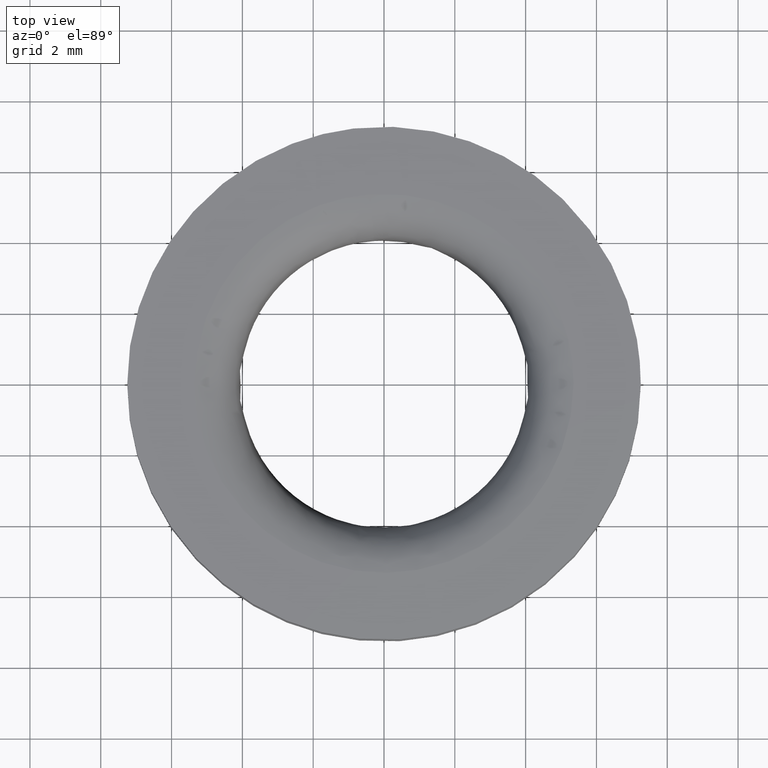
[diagram: clean part render]
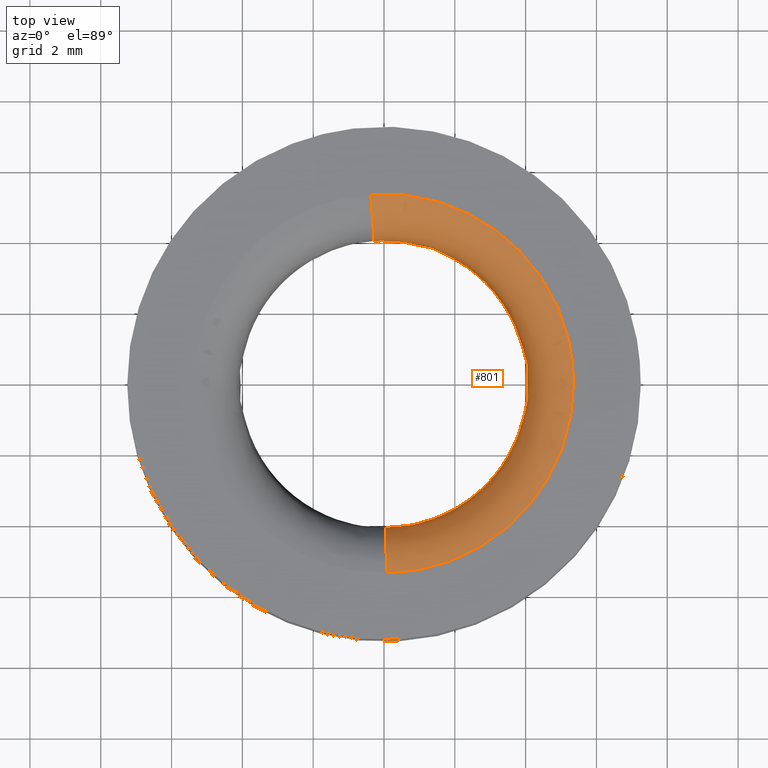
[diagram: same view with one face highlighted and labeled with its STEP entity id]
A machine part, top view. The second image highlights one B-rep face of the part: STEP entity #801.
In plain terms, the highlighted face is a freeform B-spline surface patch.
Its self-contained STEP definition (entity closure, byte-faithful):
#658=CARTESIAN_POINT('',(-0.385945459078616,5.521128567857860,0.013173857421151));
#659=CARTESIAN_POINT('',(-0.227933283982486,5.532174150424532,0.013173857421151));
#660=CARTESIAN_POINT('',(-0.069548024091556,5.534164583073453,0.013173857421151));
#661=CARTESIAN_POINT('',(5.464616558981895,5.603712607165005,0.013173857421151));
#662=CARTESIAN_POINT('',(5.534164583073453,0.069548024091556,0.013173857421151));
#663=CARTESIAN_POINT('',(5.603712607165007,-5.464616558981895,0.013173857421151));
#664=CARTESIAN_POINT('',(0.069548024091551,-5.534164583073453,0.013173857421151));
#665=CARTESIAN_POINT('',(-0.282419306441163,4.040138999508964,-0.199802171926271));
#666=CARTESIAN_POINT('',(-0.166792375614083,4.048221710924109,-0.199802171926271));
#667=CARTESIAN_POINT('',(-0.050892436395500,4.049678229183365,-0.199802171926271));
#668=CARTESIAN_POINT('',(3.998785792787865,4.100570665578865,-0.199802171926271));
#669=CARTESIAN_POINT('',(4.049678229183365,0.050892436395500,-0.199802171926271));
#670=CARTESIAN_POINT('',(4.100570665578865,-3.998785792787865,-0.199802171926271));
#671=CARTESIAN_POINT('',(0.050892436395497,-4.049678229183365,-0.199802171926271));
#672=CARTESIAN_POINT('',(-0.282419306441163,4.040138999508963,1.300000000000000));
#673=CARTESIAN_POINT('',(-0.166792375614083,4.048221710924109,1.300000000000000));
#674=CARTESIAN_POINT('',(-0.050892436395500,4.049678229183366,1.300000000000000));
#675=CARTESIAN_POINT('',(3.998785792787865,4.100570665578865,1.300000000000000));
#676=CARTESIAN_POINT('',(4.049678229183366,0.050892436395500,1.300000000000000));
#677=CARTESIAN_POINT('',(4.100570665578865,-3.998785792787865,1.300000000000000));
#678=CARTESIAN_POINT('',(0.050892436395497,-4.049678229183366,1.300000000000000));
#679=CARTESIAN_POINT('',(-0.282419306441163,4.040138999508964,2.801575401807286));
#680=CARTESIAN_POINT('',(-0.166792375614083,4.048221710924108,2.801575401807285));
#681=CARTESIAN_POINT('',(-0.050892436395500,4.049678229183365,2.801575401807286));
#682=CARTESIAN_POINT('',(3.998785792787866,4.100570665578866,2.801575401807285));
#683=CARTESIAN_POINT('',(4.049678229183365,0.050892436395500,2.801575401807286));
#684=CARTESIAN_POINT('',(4.100570665578866,-3.998785792787866,2.801575401807285));
#685=CARTESIAN_POINT('',(0.050892436395497,-4.049678229183365,2.801575401807286));
#686=CARTESIAN_POINT('',(-0.386050398184269,5.522629770373594,2.586609361610142));
#687=CARTESIAN_POINT('',(-0.227995259358558,5.533678356249487,2.586609361610144));
#688=CARTESIAN_POINT('',(-0.069566934295773,5.535669330099804,2.586609361610143));
#689=CARTESIAN_POINT('',(5.466102395804030,5.605236264395576,2.586609361610142));
#690=CARTESIAN_POINT('',(5.535669330099804,0.069566934295774,2.586609361610143));
#691=CARTESIAN_POINT('',(5.605236264395578,-5.466102395804030,2.586609361610142));
#692=CARTESIAN_POINT('',(0.069566934295769,-5.535669330099804,2.586609361610143));
#700=(BOUNDED_SURFACE()B_SPLINE_SURFACE(2,2,((#658,#665,#672,#679,#686),(#659,#666,#673,#680,#687),(#660,#667,#674,#681,#688),(#661,#668,#675,#682,#689),(#662,#669,#676,#683,#690),(#663,#670,#677,#684,#691),(#664,#671,#678,#685,#692)),.UNSPECIFIED.,.F.,.F.,.U.)B_SPLINE_SURFACE_WITH_KNOTS((3,2,2,3),(3,2,3),(0.0,0.366900509179943,9.539421986276681,18.711943463373419),(0.0,2.374243438344804,4.750311509906685),.UNSPECIFIED.)GEOMETRIC_REPRESENTATION_ITEM()RATIONAL_B_SPLINE_SURFACE(((0.963520714838826,0.635650151648446,0.977505821353428,0.635387431659284,0.964025054935658),(0.974144969227185,0.642659143576804,0.988284282420452,0.642393526707529,0.974654870426549),(0.985693070865563,0.650277612432365,1.0,0.650008846780619,0.986209016741092),(0.696990254577632,0.459815709404723,0.707106781186548,0.459625663389823,0.697355083404943),(0.985693070865563,0.650277612432365,1.0,0.650008846780619,0.986209016741092),(0.696990254577632,0.459815709404723,0.707106781186548,0.459625663389823,0.697355083404943),(0.985693070865563,0.650277612432365,1.0,0.650008846780619,0.986209016741092)))REPRESENTATION_ITEM('')SURFACE());
#701=CARTESIAN_POINT('',(-0.373072312370778,5.336976844726053,4.607788E-012));
#702=VERTEX_POINT('',#701);
#703=CARTESIAN_POINT('',(5.349998000000000,0.0,0.0));
#704=VERTEX_POINT('',#703);
#705=CARTESIAN_POINT('',(-0.373072312370778,5.336976844726053,4.607788E-012));
#706=CARTESIAN_POINT('',(-0.186763559508006,5.350000402089897,4.532787E-012));
#707=CARTESIAN_POINT('',(-0.000000164934664,5.350000359468806,4.452360E-012));
#708=CARTESIAN_POINT('',(5.349997920411526,5.349999138550985,2.148466E-012));
#709=CARTESIAN_POINT('',(5.349998000000000,0.0,0.0));
#717=(BOUNDED_CURVE()B_SPLINE_CURVE(2,(#705,#706,#707,#708,#709),.UNSPECIFIED.,.F.,.U.)B_SPLINE_CURVE_WITH_KNOTS((3,2,3),(0.237833706346366,0.250000000000000,0.500000000000000),.UNSPECIFIED.)CURVE()GEOMETRIC_REPRESENTATION_ITEM()RATIONAL_B_SPLINE_CURVE((0.972879918289533,0.985746300363030,1.0,0.707106781186547,1.0))REPRESENTATION_ITEM(''));
#718=EDGE_CURVE('',#702,#704,#717,.T.);
#719=ORIENTED_EDGE('',*,*,#718,.T.);
#720=CARTESIAN_POINT('',(0.067225597682583,-5.349573136930310,4.742582E-012));
#721=VERTEX_POINT('',#720);
#722=CARTESIAN_POINT('',(5.349998000000000,0.0,0.0));
#723=CARTESIAN_POINT('',(5.349997984397783,-5.283188234973469,2.371291E-012));
#724=CARTESIAN_POINT('',(0.067225597682583,-5.349573136930310,4.742582E-012));
#732=(BOUNDED_CURVE()B_SPLINE_CURVE(2,(#722,#723,#724),.UNSPECIFIED.,.F.,.U.)B_SPLINE_CURVE_WITH_KNOTS((3,3),(0.500000000000000,0.747784383347972),.UNSPECIFIED.)CURVE()GEOMETRIC_REPRESENTATION_ITEM()RATIONAL_B_SPLINE_CURVE((1.0,0.709702537558024,0.994854496865377))REPRESENTATION_ITEM(''));
#733=EDGE_CURVE('',#704,#721,#732,.T.);
#734=ORIENTED_EDGE('',*,*,#733,.T.);
#735=CARTESIAN_POINT('',(0.067248550375671,-5.351187910571347,2.599999000000008));
#736=VERTEX_POINT('',#735);
#737=CARTESIAN_POINT('',(0.067225597682583,-5.349573136930310,4.742582E-012));
#738=CARTESIAN_POINT('',(0.050889776216541,-4.049678262613917,0.000002483334297));
#739=CARTESIAN_POINT('',(0.050891105894500,-4.049678245908878,1.300000000001181));
#740=CARTESIAN_POINT('',(0.050892437225290,-4.049678229183074,2.601613452466413));
#741=CARTESIAN_POINT('',(0.067248550375671,-5.351187910571347,2.599999000000008));
#749=(BOUNDED_CURVE()B_SPLINE_CURVE(2,(#737,#738,#739,#740,#741),.UNSPECIFIED.,.F.,.U.)B_SPLINE_CURVE_WITH_KNOTS((3,2,3),(-3.781080216837798,-2.0,-0.217410354238450),.UNSPECIFIED.)CURVE()GEOMETRIC_REPRESENTATION_ITEM()RATIONAL_B_SPLINE_CURVE((0.930395486795932,0.682054713381032,1.0,0.681785261277047,0.930816820930347))REPRESENTATION_ITEM(''));
#750=EDGE_CURVE('',#721,#736,#749,.T.);
#751=ORIENTED_EDGE('',*,*,#750,.T.);
#752=CARTESIAN_POINT('',(5.351610451245589,0.0,2.599999000000000));
#753=VERTEX_POINT('',#752);
#754=CARTESIAN_POINT('',(5.351610451245589,0.0,2.599999000000000));
#755=CARTESIAN_POINT('',(5.351610451245590,-5.284779164811236,2.599999000000000));
#756=CARTESIAN_POINT('',(0.067248550375671,-5.351187910571347,2.599999000000008));
#764=(BOUNDED_CURVE()B_SPLINE_CURVE(2,(#754,#755,#756),.UNSPECIFIED.,.F.,.U.)B_SPLINE_CURVE_WITH_KNOTS((3,3),(0.500000000000000,0.747784295921381),.UNSPECIFIED.)CURVE()GEOMETRIC_REPRESENTATION_ITEM()RATIONAL_B_SPLINE_CURVE((1.0,0.709702639984647,0.994854295643212))REPRESENTATION_ITEM(''));
#765=EDGE_CURVE('',#753,#736,#764,.T.);
#766=ORIENTED_EDGE('',*,*,#765,.F.);
#767=CARTESIAN_POINT('',(-0.373184664486969,5.338584167763401,2.599998998458898));
#768=VERTEX_POINT('',#767);
#769=CARTESIAN_POINT('',(-0.373184664486969,5.338584167763401,2.599998998458898));
#770=CARTESIAN_POINT('',(-0.186819763380104,5.351611669580366,2.599998998483982));
#771=CARTESIAN_POINT('',(-0.000000083654502,5.351611647963042,2.599998998510882));
#772=CARTESIAN_POINT('',(5.351610410878489,5.351611028716175,2.599998999281432));
#773=CARTESIAN_POINT('',(5.351610451245589,0.0,2.599999000000000));
#781=(BOUNDED_CURVE()B_SPLINE_CURVE(2,(#769,#770,#771,#772,#773),.UNSPECIFIED.,.F.,.U.)B_SPLINE_CURVE_WITH_KNOTS((3,2,3),(0.237833706509029,0.250000000000000,0.500000000000000),.UNSPECIFIED.)CURVE()GEOMETRIC_REPRESENTATION_ITEM()RATIONAL_B_SPLINE_CURVE((0.972879918633580,0.985746300553602,1.0,0.707106781186547,1.0))REPRESENTATION_ITEM(''));
#782=EDGE_CURVE('',#768,#753,#781,.T.);
#783=ORIENTED_EDGE('',*,*,#782,.F.);
#784=CARTESIAN_POINT('',(-0.373072312370778,5.336976844726054,4.607788E-012));
#785=CARTESIAN_POINT('',(-0.282419529414038,4.040138983922403,-0.000002447796619));
#786=CARTESIAN_POINT('',(-0.282419529414038,4.040138983922404,1.300000000000000));
#787=CARTESIAN_POINT('',(-0.282419529414038,4.040138983922403,2.601614695546028));
#788=CARTESIAN_POINT('',(-0.373184664486969,5.338584167763401,2.599998998458897));
#796=(BOUNDED_CURVE()B_SPLINE_CURVE(2,(#784,#785,#786,#787,#788),.UNSPECIFIED.,.F.,.U.)B_SPLINE_CURVE_WITH_KNOTS((3,2,3),(-3.781084824768846,-2.0,-0.217409193549716),.UNSPECIFIED.)CURVE()GEOMETRIC_REPRESENTATION_ITEM()RATIONAL_B_SPLINE_CURVE((0.909468241467737,0.666711634718936,0.977505800795127,0.666448845258098,0.909879158943792))REPRESENTATION_ITEM(''));
#797=EDGE_CURVE('',#702,#768,#796,.T.);
#798=ORIENTED_EDGE('',*,*,#797,.F.);
#799=EDGE_LOOP('',(#719,#734,#751,#766,#783,#798));
#800=FACE_OUTER_BOUND('',#799,.T.);
#801=ADVANCED_FACE('',(#800),#700,.T.);